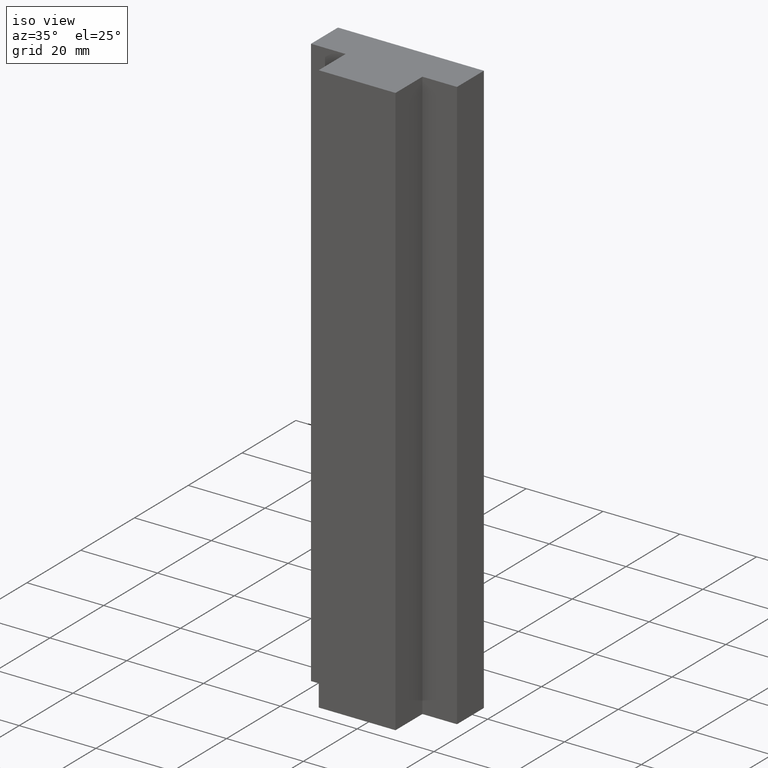
[diagram: clean part render]
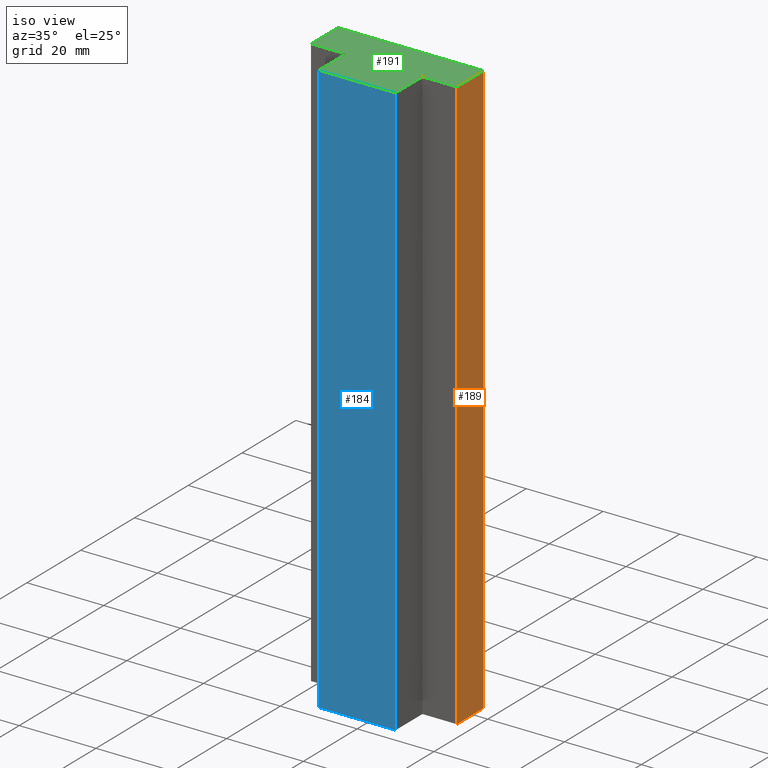
[diagram: same view with three faces highlighted in distinct colors, each labeled with its STEP entity id]
A machine part, iso view with three faces highlighted in distinct colors.
Their STEP definitions:

[orange] entity #189 — the highlighted planar face has unit normal (1, -0, 0).
#23=FACE_OUTER_BOUND('',#33,.T.);
#33=EDGE_LOOP('',(#156,#157,#158,#159));
#36=LINE('',#275,#60);
#56=LINE('',#314,#80);
#57=LINE('',#317,#81);
#58=LINE('',#318,#82);
#60=VECTOR('',#229,10.);
#80=VECTOR('',#261,10.);
#81=VECTOR('',#264,10.);
#82=VECTOR('',#265,10.);
#84=VERTEX_POINT('',#273);
#85=VERTEX_POINT('',#274);
#98=VERTEX_POINT('',#312);
#99=VERTEX_POINT('',#316);
#100=EDGE_CURVE('',#84,#85,#36,.T.);
#120=EDGE_CURVE('',#98,#85,#56,.T.);
#121=EDGE_CURVE('',#98,#99,#57,.T.);
#122=EDGE_CURVE('',#84,#99,#58,.T.);
#156=ORIENTED_EDGE('',*,*,#121,.T.);
#157=ORIENTED_EDGE('',*,*,#122,.F.);
#158=ORIENTED_EDGE('',*,*,#100,.T.);
#159=ORIENTED_EDGE('',*,*,#120,.F.);
#179=PLANE('',#222);
#189=ADVANCED_FACE('',(#23),#179,.T.);
#222=AXIS2_PLACEMENT_3D('',#315,#262,#263);
#229=DIRECTION('',(4.44089209850062E-16,1.,0.));
#261=DIRECTION('',(0.,0.,-1.));
#262=DIRECTION('center_axis',(1.,-4.44089209850062E-16,0.));
#263=DIRECTION('ref_axis',(0.,0.,-1.));
#264=DIRECTION('',(-4.44089209850062E-16,-1.,0.));
#265=DIRECTION('',(0.,0.,1.));
#273=CARTESIAN_POINT('',(19.,10.,-75.));
#274=CARTESIAN_POINT('',(19.,20.,-75.));
#275=CARTESIAN_POINT('',(19.,20.,-75.));
#312=CARTESIAN_POINT('',(19.,20.,75.));
#314=CARTESIAN_POINT('',(19.,20.,0.));
#315=CARTESIAN_POINT('Origin',(19.,20.,0.));
#316=CARTESIAN_POINT('',(19.,10.,75.));
#317=CARTESIAN_POINT('',(19.,20.,75.));
#318=CARTESIAN_POINT('',(19.,10.,0.));

[blue] entity #184 — the highlighted planar face has unit normal (0, -1, 0).
#18=FACE_OUTER_BOUND('',#28,.T.);
#28=EDGE_LOOP('',(#136,#137,#138,#139));
#39=LINE('',#281,#63);
#45=LINE('',#293,#69);
#47=LINE('',#297,#71);
#48=LINE('',#298,#72);
#63=VECTOR('',#232,10.);
#69=VECTOR('',#240,10.);
#71=VECTOR('',#244,10.);
#72=VECTOR('',#245,10.);
#87=VERTEX_POINT('',#278);
#88=VERTEX_POINT('',#280);
#93=VERTEX_POINT('',#291);
#94=VERTEX_POINT('',#296);
#103=EDGE_CURVE('',#88,#87,#39,.T.);
#109=EDGE_CURVE('',#93,#87,#45,.T.);
#111=EDGE_CURVE('',#93,#94,#47,.T.);
#112=EDGE_CURVE('',#94,#88,#48,.T.);
#136=ORIENTED_EDGE('',*,*,#111,.T.);
#137=ORIENTED_EDGE('',*,*,#112,.T.);
#138=ORIENTED_EDGE('',*,*,#103,.T.);
#139=ORIENTED_EDGE('',*,*,#109,.F.);
#174=PLANE('',#217);
#184=ADVANCED_FACE('',(#18),#174,.T.);
#217=AXIS2_PLACEMENT_3D('',#295,#242,#243);
#232=DIRECTION('',(1.,0.,0.));
#240=DIRECTION('',(0.,0.,-1.));
#242=DIRECTION('center_axis',(0.,-1.,0.));
#243=DIRECTION('ref_axis',(0.,0.,-1.));
#244=DIRECTION('',(-1.,0.,0.));
#245=DIRECTION('',(0.,0.,-1.));
#278=CARTESIAN_POINT('',(10.,-9.38817987215873E-16,-75.));
#280=CARTESIAN_POINT('',(-10.,-9.38817987215873E-16,-75.));
#281=CARTESIAN_POINT('',(10.,-9.38817987215873E-16,-75.));
#291=CARTESIAN_POINT('',(10.,-9.38817987215873E-16,75.));
#293=CARTESIAN_POINT('',(10.,-9.38817987215873E-16,0.));
#295=CARTESIAN_POINT('Origin',(10.,-9.38817987215873E-16,0.));
#296=CARTESIAN_POINT('',(-10.,-9.38817987215873E-16,75.));
#297=CARTESIAN_POINT('',(10.,-9.38817987215873E-16,75.));
#298=CARTESIAN_POINT('',(-10.,-9.38817987215873E-16,0.));

[green] entity #191 — the highlighted planar face has unit normal (0, 0, 1).
#25=FACE_OUTER_BOUND('',#35,.T.);
#35=EDGE_LOOP('',(#164,#165,#166,#167,#168,#169,#170,#171));
#44=LINE('',#292,#68);
#47=LINE('',#297,#71);
#49=LINE('',#301,#73);
#51=LINE('',#305,#75);
#53=LINE('',#309,#77);
#55=LINE('',#313,#79);
#57=LINE('',#317,#81);
#59=LINE('',#320,#83);
#68=VECTOR('',#239,10.);
#71=VECTOR('',#244,10.);
#73=VECTOR('',#248,10.);
#75=VECTOR('',#252,10.);
#77=VECTOR('',#256,10.);
#79=VECTOR('',#260,10.);
#81=VECTOR('',#264,10.);
#83=VECTOR('',#268,10.);
#92=VERTEX_POINT('',#290);
#93=VERTEX_POINT('',#291);
#94=VERTEX_POINT('',#296);
#95=VERTEX_POINT('',#300);
#96=VERTEX_POINT('',#304);
#97=VERTEX_POINT('',#308);
#98=VERTEX_POINT('',#312);
#99=VERTEX_POINT('',#316);
#108=EDGE_CURVE('',#92,#93,#44,.T.);
#111=EDGE_CURVE('',#93,#94,#47,.T.);
#113=EDGE_CURVE('',#94,#95,#49,.T.);
#115=EDGE_CURVE('',#95,#96,#51,.T.);
#117=EDGE_CURVE('',#96,#97,#53,.T.);
#119=EDGE_CURVE('',#97,#98,#55,.T.);
#121=EDGE_CURVE('',#98,#99,#57,.T.);
#123=EDGE_CURVE('',#99,#92,#59,.T.);
#164=ORIENTED_EDGE('',*,*,#108,.F.);
#165=ORIENTED_EDGE('',*,*,#123,.F.);
#166=ORIENTED_EDGE('',*,*,#121,.F.);
#167=ORIENTED_EDGE('',*,*,#119,.F.);
#168=ORIENTED_EDGE('',*,*,#117,.F.);
#169=ORIENTED_EDGE('',*,*,#115,.F.);
#170=ORIENTED_EDGE('',*,*,#113,.F.);
#171=ORIENTED_EDGE('',*,*,#111,.F.);
#181=PLANE('',#224);
#191=ADVANCED_FACE('',(#25),#181,.T.);
#224=AXIS2_PLACEMENT_3D('',#321,#269,#270);
#239=DIRECTION('',(3.33066907387547E-16,-1.,0.));
#244=DIRECTION('',(-1.,0.,0.));
#248=DIRECTION('',(3.33066907387547E-16,1.,0.));
#252=DIRECTION('',(-1.,1.2335811384724E-16,0.));
#256=DIRECTION('',(-8.88178419700125E-16,1.,0.));
#260=DIRECTION('',(1.,0.,0.));
#264=DIRECTION('',(-4.44089209850062E-16,-1.,0.));
#268=DIRECTION('',(-1.,-1.2335811384724E-16,0.));
#269=DIRECTION('center_axis',(0.,0.,1.));
#270=DIRECTION('ref_axis',(1.,0.,0.));
#290=CARTESIAN_POINT('',(10.,10.,75.));
#291=CARTESIAN_POINT('',(10.,-9.38817987215873E-16,75.));
#292=CARTESIAN_POINT('',(10.,10.,75.));
#296=CARTESIAN_POINT('',(-10.,-9.38817987215873E-16,75.));
#297=CARTESIAN_POINT('',(10.,-9.38817987215873E-16,75.));
#300=CARTESIAN_POINT('',(-10.,10.,75.));
#301=CARTESIAN_POINT('',(-10.,-9.38817987215873E-16,75.));
#304=CARTESIAN_POINT('',(-19.,10.,75.));
#305=CARTESIAN_POINT('',(-10.,10.,75.));
#308=CARTESIAN_POINT('',(-19.,20.,75.));
#309=CARTESIAN_POINT('',(-19.,10.,75.));
#312=CARTESIAN_POINT('',(19.,20.,75.));
#313=CARTESIAN_POINT('',(-19.,20.,75.));
#316=CARTESIAN_POINT('',(19.,10.,75.));
#317=CARTESIAN_POINT('',(19.,20.,75.));
#320=CARTESIAN_POINT('',(19.,10.,75.));
#321=CARTESIAN_POINT('Origin',(-1.2490009027033E-15,11.551724137931,75.));